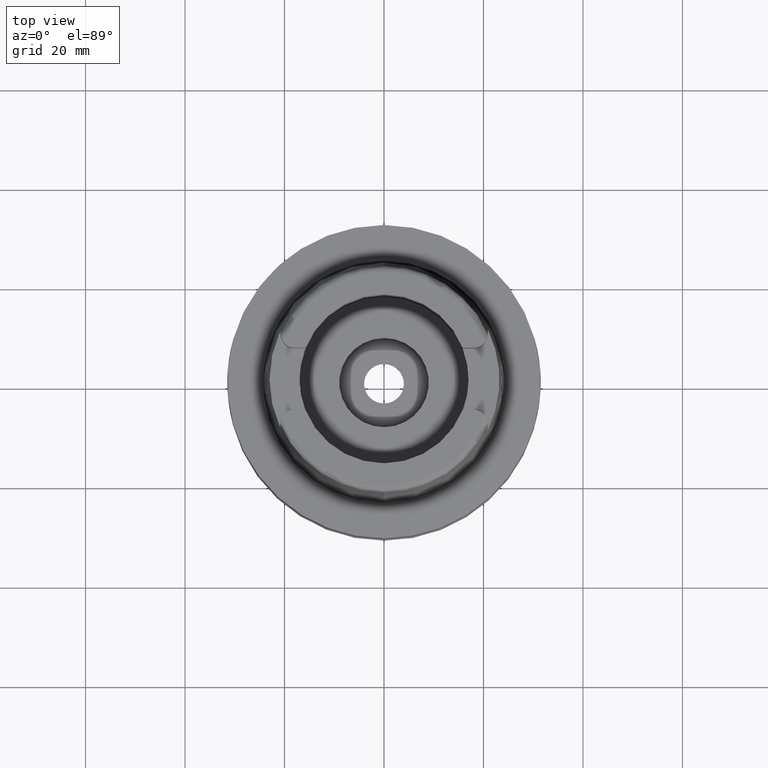
[diagram: clean part render]
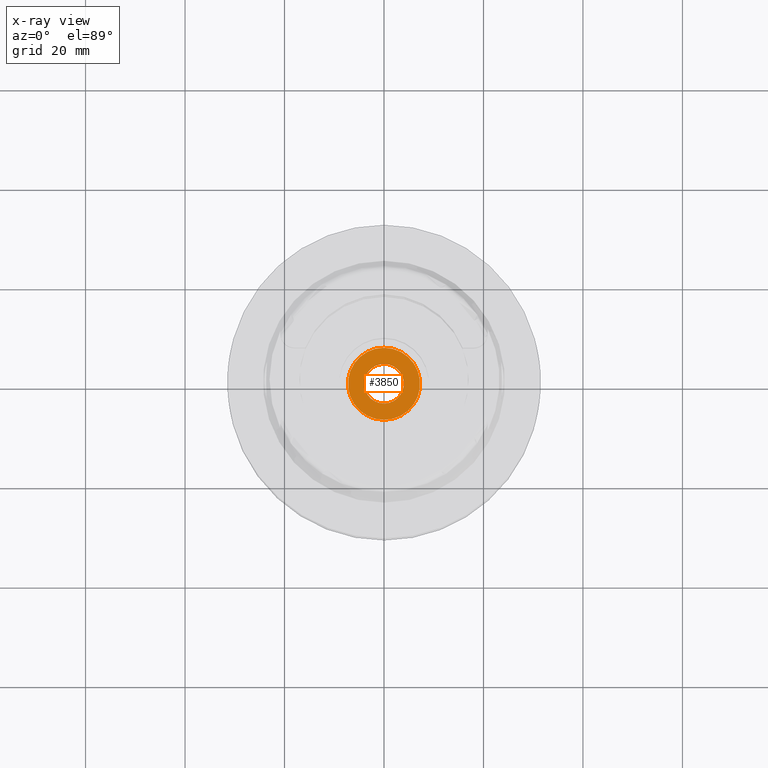
[diagram: x-ray — body ghosted, one internal face saturated and labeled with its STEP entity id]
A machine part, top view, then the same camera in x-ray: the body is ghosted and one INTERNAL B-rep face — a face not visible from any outside direction — is saturated and labeled: STEP entity #3850.
In plain terms, the highlighted planar face has unit normal (0, 0, 1).
Its self-contained STEP definition (entity closure, byte-faithful):
#1833=CARTESIAN_POINT('',(0.E0,0.E0,-2.5E1));
#1834=DIRECTION('',(0.E0,0.E0,1.E0));
#1835=DIRECTION('',(0.E0,-1.E0,0.E0));
#1836=AXIS2_PLACEMENT_3D('',#1833,#1834,#1835);
#1841=CARTESIAN_POINT('',(0.E0,0.E0,-2.5E1));
#1842=DIRECTION('',(0.E0,0.E0,1.E0));
#1843=DIRECTION('',(0.E0,1.E0,0.E0));
#1844=AXIS2_PLACEMENT_3D('',#1841,#1842,#1843);
#1849=CARTESIAN_POINT('',(0.E0,0.E0,-2.5E1));
#1850=DIRECTION('',(0.E0,0.E0,-1.E0));
#1851=DIRECTION('',(0.E0,-1.E0,0.E0));
#1852=AXIS2_PLACEMENT_3D('',#1849,#1850,#1851);
#1857=CARTESIAN_POINT('',(0.E0,0.E0,-2.5E1));
#1858=DIRECTION('',(0.E0,0.E0,-1.E0));
#1859=DIRECTION('',(0.E0,1.E0,0.E0));
#1860=AXIS2_PLACEMENT_3D('',#1857,#1858,#1859);
#2392=CARTESIAN_POINT('',(0.E0,4.E0,-2.5E1));
#2393=VERTEX_POINT('',#2392);
#2394=CARTESIAN_POINT('',(0.E0,-4.E0,-2.5E1));
#2395=VERTEX_POINT('',#2394);
#2396=CARTESIAN_POINT('',(0.E0,-7.25E0,-2.5E1));
#2397=CARTESIAN_POINT('',(0.E0,7.25E0,-2.5E1));
#2398=VERTEX_POINT('',#2396);
#2399=VERTEX_POINT('',#2397);
#3835=CARTESIAN_POINT('',(0.E0,0.E0,-2.5E1));
#3836=DIRECTION('',(0.E0,0.E0,1.E0));
#3837=DIRECTION('',(0.E0,1.E0,0.E0));
#3838=AXIS2_PLACEMENT_3D('',#3835,#3836,#3837);
#3839=PLANE('',#3838);
#3840=ORIENTED_EDGE('',*,*,#3828,.T.);
#3841=ORIENTED_EDGE('',*,*,#3817,.T.);
#3842=EDGE_LOOP('',(#3840,#3841));
#3843=FACE_OUTER_BOUND('',#3842,.F.);
#3845=ORIENTED_EDGE('',*,*,#3844,.T.);
#3847=ORIENTED_EDGE('',*,*,#3846,.T.);
#3848=EDGE_LOOP('',(#3845,#3847));
#3849=FACE_BOUND('',#3848,.F.);
#1837=CIRCLE('',#1836,7.25E0);
#1845=CIRCLE('',#1844,7.25E0);
#1853=CIRCLE('',#1852,4.E0);
#1861=CIRCLE('',#1860,4.E0);
#3817=EDGE_CURVE('',#2399,#2398,#1845,.T.);
#3828=EDGE_CURVE('',#2398,#2399,#1837,.T.);
#3844=EDGE_CURVE('',#2395,#2393,#1853,.T.);
#3846=EDGE_CURVE('',#2393,#2395,#1861,.T.);
#3850=ADVANCED_FACE('',(#3843,#3849),#3839,.F.);